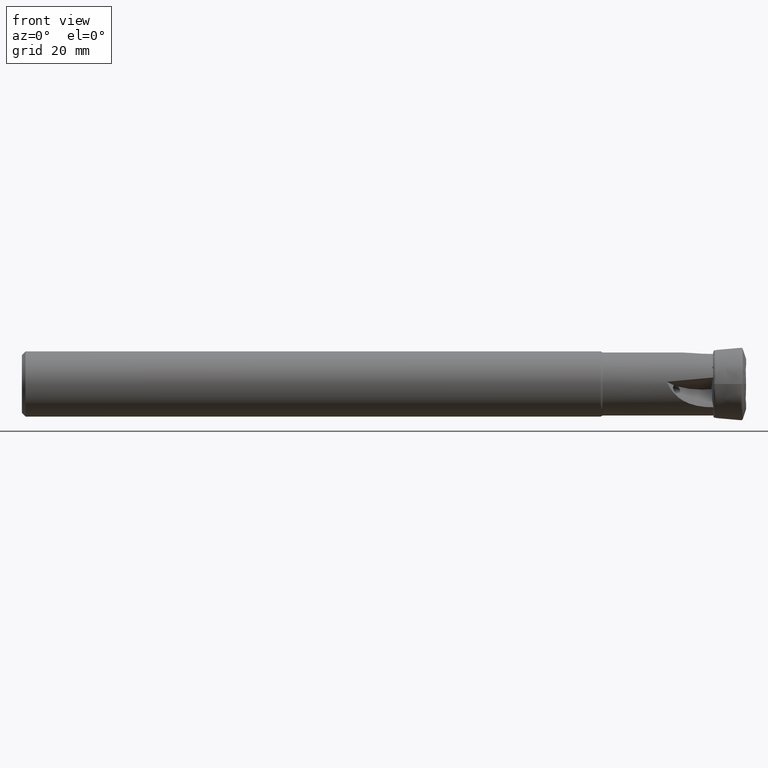
[diagram: clean part render]
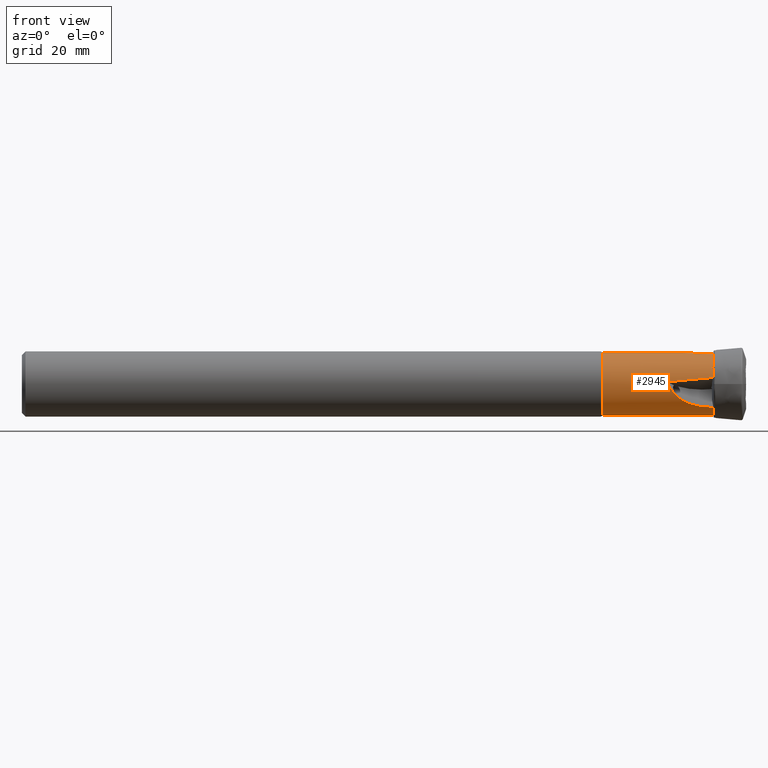
[diagram: same view with one face highlighted and labeled with its STEP entity id]
A machine part, front view. The second image highlights one B-rep face of the part: STEP entity #2945.
In plain terms, the highlighted cylindrical surface (edge-blend (fillet) strip) has radius 8.7 mm, axis along (-1, -0, -0).
Its self-contained STEP definition (entity closure, byte-faithful):
#7 = CARTESIAN_POINT ( 'NONE',  ( 190.8331780349187200, -0.5349060885076061300, -8.683563832427557500 ) ) ;
#24 = CARTESIAN_POINT ( 'NONE',  ( 0.0000000000000000000, 0.0000000000000000000, 0.0000000000000000000 ) ) ;
#31 = EDGE_CURVE ( 'NONE', #3318, #1858, #154, .T. ) ;
#50 = CARTESIAN_POINT ( 'NONE',  ( 185.5817740605085900, -1.805861883482547700, 8.511710115871668600 ) ) ;
#100 = CARTESIAN_POINT ( 'NONE',  ( 190.7499339922303800, -0.04457951022985862100, -8.699922106417663100 ) ) ;
#108 = VERTEX_POINT ( 'NONE', #3670 ) ;
#154 = LINE ( 'NONE', #3620, #2184 ) ;
#164 = CARTESIAN_POINT ( 'NONE',  ( 190.7218601797398500, -7.443768679440847100, 4.503366279459783100 ) ) ;
#168 = EDGE_CURVE ( 'NONE', #3216, #1994, #1362, .T. ) ;
#169 = CARTESIAN_POINT ( 'NONE',  ( 190.9273419289814300, -6.755992365645762600, 5.481755926789754000 ) ) ;
#179 = CARTESIAN_POINT ( 'NONE',  ( 190.8701237815598700, -7.230416549526768900, 4.838541298176176400 ) ) ;
#186 = VERTEX_POINT ( 'NONE', #3763 ) ;
#195 = CARTESIAN_POINT ( 'NONE',  ( 178.3752467746459200, -8.722288639144759200, -0.003202405365566796200 ) ) ;
#197 = CARTESIAN_POINT ( 'NONE',  ( 190.7606320684751900, -7.524682127046013100, 4.366824806070686900 ) ) ;
#198 = CIRCLE ( 'NONE', #1023, 8.699999999999999300 ) ;
#274 = CARTESIAN_POINT ( 'NONE',  ( 190.7358695479989300, -0.3408540665689983000, -8.693320338357683100 ) ) ;
#373 = CARTESIAN_POINT ( 'NONE',  ( 184.8540493353169700, -1.525859984726175300, 8.566335129205413100 ) ) ;
#396 = DIRECTION ( 'NONE',  ( 1.000000000000000000, 0.0000000000000000000, 0.0000000000000000000 ) ) ;
#410 = CARTESIAN_POINT ( 'NONE',  ( 187.0646858415118700, -2.255131062662592000, 8.405605889762728800 ) ) ;
#468 = EDGE_CURVE ( 'NONE', #1994, #872, #198, .T. ) ;
#493 = CARTESIAN_POINT ( 'NONE',  ( 178.6739644203784700, -8.698017992902089500, -0.5953883594258707600 ) ) ;
#509 = CARTESIAN_POINT ( 'NONE',  ( 190.7499339922303800, -7.512063799988648100, 4.388568041556061900 ) ) ;
#518 = CARTESIAN_POINT ( 'NONE',  ( 0.0000000000000000000, 1.065442715258197200E-015, -8.699999999999999300 ) ) ;
#520 = CARTESIAN_POINT ( 'NONE',  ( 181.1386516663259300, -7.918395202408045300, -3.611436591768482500 ) ) ;
#535 = CIRCLE ( 'NONE', #3492, 8.699999999999999300 ) ;
#536 = CARTESIAN_POINT ( 'NONE',  ( 190.8516506979230800, -7.241575316812192600, 4.821782547039671100 ) ) ;
#551 = VECTOR ( 'NONE', #2754, 1000.000000000000000 ) ;
#632 = B_SPLINE_CURVE_WITH_KNOTS ( 'NONE', 3,
 ( #2118, #3696, #2087, #4017, #1106, #179, #536, #1772, #2133, #2416, #2404, #843, #3077, #2442, #796, #1134, #3377, #1790, #3047, #1121, #4002, #164, #1438, #2108, #1451, #1147, #509, #197, #3090, #3455, #3430, #4053, #2177, #1532, #3775, #1879, #1843, #2824, #2164, #879 ),
 .UNSPECIFIED., .F., .F.,
 ( 4, 3, 3, 3, 3, 3, 3, 3, 3, 3, 3, 3, 3, 4 ),
 ( 0.0003847628535540022400, 0.0004114584794302654200, 0.0004934319040601285300, 0.0005754021262754638600, 0.0006573683344469059000, 0.0007393305208305855400, 0.0008212893532444061700, 0.0009032459673836935500, 0.0009852017346431050300, 0.001067158032011791300, 0.001149116022780997300, 0.001231076457913003500, 0.001313039524460435800, 0.001345262288692865500 ),
 .UNSPECIFIED. ) ;
#657 = B_SPLINE_CURVE_WITH_KNOTS ( 'NONE', 3,
 ( #1030, #2314, #1318, #985, #373, #50, #3570, #410, #1308, #3586, #2358, #2021, #1648, #2331 ),
 .UNSPECIFIED., .F., .F.,
 ( 4, 2, 2, 2, 2, 2, 4 ),
 ( 0.006608827281839171200, 0.008933263082616197200, 0.01009548098300467300, 0.01125769888339314900, 0.01358213468417001800, 0.01474435258455845400, 0.01590657048494689000 ),
 .UNSPECIFIED. ) ;
#693 = CARTESIAN_POINT ( 'NONE',  ( 178.1196443445709300, -8.677995356733500600, 0.6183822349580918600 ) ) ;
#703 = CARTESIAN_POINT ( 'NONE',  ( 190.7734430515116900, -0.4433061486187554500, -8.688734438676649000 ) ) ;
#730 = CARTESIAN_POINT ( 'NONE',  ( 190.7197599831859800, -0.2053798488793059900, -8.697618130935866900 ) ) ;
#744 = CARTESIAN_POINT ( 'NONE',  ( 190.7412597237241100, -0.07067760530557000400, -8.699753392478536200 ) ) ;
#749 = CARTESIAN_POINT ( 'NONE',  ( 190.9150110608191500, -6.685362505206562400, 5.567398690050698200 ) ) ;
#774 = CARTESIAN_POINT ( 'NONE',  ( 182.1612330634172000, -1.359809758541708100E-014, 8.699999999999999300 ) ) ;
#776 = ORIENTED_EDGE ( 'NONE', *, *, #1779, .F. ) ;
#794 = CARTESIAN_POINT ( 'NONE',  ( 188.2681702373988600, -5.982594980546073400, -6.316952498377108100 ) ) ;
#796 = CARTESIAN_POINT ( 'NONE',  ( 190.7426001314112800, -7.344080769572440400, 4.664244725177048200 ) ) ;
#814 = CARTESIAN_POINT ( 'NONE',  ( 179.1959624902593500, -8.585264319701060700, -1.436397450817499000 ) ) ;
#813 =( BOUNDED_CURVE ( )  B_SPLINE_CURVE ( 3, ( #1740, #3683, #3653, #3709 ),
 .UNSPECIFIED., .F., .F. ) 
 B_SPLINE_CURVE_WITH_KNOTS ( ( 4, 4 ),
 ( 1.118335955188412000, 1.257367353434170300 ),
 .UNSPECIFIED. ) 
 CURVE ( )  GEOMETRIC_REPRESENTATION_ITEM ( )  RATIONAL_B_SPLINE_CURVE ( ( 1.000000000000000000, 0.9983898377652034000, 0.9983898377652034000, 1.000000000000000000 ) ) 
 REPRESENTATION_ITEM ( '' )  );
#818 = VERTEX_POINT ( 'NONE', #1286 ) ;
#827 = CARTESIAN_POINT ( 'NONE',  ( 187.6135913091343400, -6.068088918276020900, -6.236524026993617300 ) ) ;
#843 = CARTESIAN_POINT ( 'NONE',  ( 190.7734430515116100, -7.303011676321418100, 4.728281605695871200 ) ) ;
#872 = VERTEX_POINT ( 'NONE', #2081 ) ;
#879 = CARTESIAN_POINT ( 'NONE',  ( 190.9334004331780100, -7.629708491137914300, 4.180615784816636100 ) ) ;
#938 = CARTESIAN_POINT ( 'NONE',  ( 160.3696152422706400, 1.065442715258197200E-015, -8.699999999999999300 ) ) ;
#985 = CARTESIAN_POINT ( 'NONE',  ( 184.4955035203367700, -1.369961659060033900, 8.593177537093506400 ) ) ;
#1023 = AXIS2_PLACEMENT_3D ( 'NONE', #3207, #2250, #3167 ) ;
#1028 = CARTESIAN_POINT ( 'NONE',  ( 190.7515286362786100, -0.3933053293049838500, -8.691141315626271800 ) ) ;
#1030 = CARTESIAN_POINT ( 'NONE',  ( 182.1612330634172000, -1.359809758541708100E-014, 8.699999999999999300 ) ) ;
#1041 = CARTESIAN_POINT ( 'NONE',  ( 190.7198797844603500, -0.2328733812049033900, -8.696925373574918800 ) ) ;
#1051 = CARTESIAN_POINT ( 'NONE',  ( 190.7239603618603800, -0.1509108599627724300, -8.698733697272050600 ) ) ;
#1065 =( BOUNDED_CURVE ( )  B_SPLINE_CURVE ( 3, ( #1750, #1785, #1448, #1813 ),
 .UNSPECIFIED., .F., .F. ) 
 B_SPLINE_CURVE_WITH_KNOTS ( ( 4, 4 ),
 ( 3.821217165952724800, 3.840356779138673500 ),
 .UNSPECIFIED. ) 
 CURVE ( )  GEOMETRIC_REPRESENTATION_ITEM ( )  RATIONAL_B_SPLINE_CURVE ( ( 1.000000000000000000, 0.9999694731668991000, 0.9999694731668991000, 1.000000000000000000 ) ) 
 REPRESENTATION_ITEM ( '' )  );
#1085 = EDGE_CURVE ( 'NONE', #3753, #186, #3293, .T. ) ;
#1106 = CARTESIAN_POINT ( 'NONE',  ( 190.8903372764384900, -7.220013879437948000, 4.854037706031434100 ) ) ;
#1120 = CARTESIAN_POINT ( 'NONE',  ( 190.2665021646018600, -5.855201224090928100, -6.434821429353424300 ) ) ;
#1121 = CARTESIAN_POINT ( 'NONE',  ( 190.7198797844603500, -7.415321617730974400, 4.550136950775958600 ) ) ;
#1132 = CARTESIAN_POINT ( 'NONE',  ( 189.5998025217604700, -5.875725518560486200, -6.416477320036670500 ) ) ;
#1134 = CARTESIAN_POINT ( 'NONE',  ( 190.7358695479989000, -7.358209222969271000, 4.641848449810694000 ) ) ;
#1142 = EDGE_CURVE ( 'NONE', #3027, #818, #1065, .T. ) ;
#1147 = CARTESIAN_POINT ( 'NONE',  ( 190.7412597237241100, -7.498868641893539100, 4.411085297912441300 ) ) ;
#1164 = ORIENTED_EDGE ( 'NONE', *, *, #1485, .F. ) ;
#1166 = EDGE_CURVE ( 'NONE', #3079, #1858, #1590, .T. ) ;
#1202 = EDGE_LOOP ( 'NONE', ( #2519, #776, #2782, #3818, #2996, #2041, #3360, #1794, #1963, #1164, #1723, #2584, #2362, #3718, #3113, #2963, #3805 ) ) ;
#1256 = CARTESIAN_POINT ( 'NONE',  ( 190.9118815980675700, -0.6104784657498100200, -8.678554951307027900 ) ) ;
#1286 = CARTESIAN_POINT ( 'NONE',  ( 190.9150110608191500, -1.478827445976908800, -8.573393108042193200 ) ) ;
#1308 = CARTESIAN_POINT ( 'NONE',  ( 187.8233777372729800, -2.411537407181532500, 8.359729626526613400 ) ) ;
#1310 = CARTESIAN_POINT ( 'NONE',  ( 190.9211409508615400, -1.479363741864280400, -8.573300602185131700 ) ) ;
#1318 = CARTESIAN_POINT ( 'NONE',  ( 183.4500707225368800, -0.8596607157168487700, 8.664234760154228000 ) ) ;
#1323 = CARTESIAN_POINT ( 'NONE',  ( 190.9334004331788900, -7.201718489643049300, 4.881111635266439200 ) ) ;
#1341 = CARTESIAN_POINT ( 'NONE',  ( 190.9211409508615400, -6.685014244840661300, 5.567816882984575800 ) ) ;
#1350 = CARTESIAN_POINT ( 'NONE',  ( 190.7218601797398200, -0.1781452608380987000, -8.698175916020609600 ) ) ;
#1362 = B_SPLINE_CURVE_WITH_KNOTS ( 'NONE', 3,
 ( #1789, #195, #493, #814, #4016, #3695, #3651, #2117, #3028, #520, #2457, #1771, #1815, #3989, #2730, #2774, #2758, #827, #794, #1132, #1120, #3682 ),
 .UNSPECIFIED., .F., .F.,
 ( 4, 2, 2, 2, 2, 2, 2, 2, 2, 2, 4 ),
 ( 1.190436211450291600E-016, 0.001988321310618527800, 0.002982481965927709700, 0.003976642621236892500, 0.004970803276546074400, 0.005964963931855257200, 0.007953285242473622000, 0.009941606553091987500, 0.01192992786371035100, 0.01391824917432871700, 0.01590657048494707700 ),
 .UNSPECIFIED. ) ;
#1412 = CARTESIAN_POINT ( 'NONE',  ( 190.9334004331788300, -0.6263074300270636800, -8.677426980568197800 ) ) ;
#1438 = CARTESIAN_POINT ( 'NONE',  ( 190.7239603618604100, -7.457868932612010200, 4.480059487070628100 ) ) ;
#1448 = CARTESIAN_POINT ( 'NONE',  ( 190.9212119510662800, -1.424129468495694700, -8.582827980480596300 ) ) ;
#1451 = CARTESIAN_POINT ( 'NONE',  ( 190.7347770183568800, -7.485342230401625100, 4.433920578197811000 ) ) ;
#1463 = EDGE_CURVE ( 'NONE', #3216, #2787, #813, .T. ) ;
#1473 = DIRECTION ( 'NONE',  ( 0.0000000000000000000, 0.0000000000000000000, 1.000000000000000000 ) ) ;
#1482 = CARTESIAN_POINT ( 'NONE',  ( 190.9334004331780100, 0.0000000000000000000, 0.0000000000000000000 ) ) ;
#1485 = EDGE_CURVE ( 'NONE', #2268, #3136, #632, .T. ) ;
#1532 = CARTESIAN_POINT ( 'NONE',  ( 190.8481881192022600, -7.592971215377183100, 4.246973995970949800 ) ) ;
#1539 = CARTESIAN_POINT ( 'NONE',  ( 190.7426001314113100, -0.3673140366848319800, -8.692282876483020000 ) ) ;
#1590 = CIRCLE ( 'NONE', #2097, 8.699999999999999300 ) ;
#1592 = CARTESIAN_POINT ( 'NONE',  ( 190.9334004331780100, -8.508560881904617900, 1.815045927496741400 ) ) ;
#1648 = CARTESIAN_POINT ( 'NONE',  ( 190.5435836056169900, -2.638165047689402100, 8.290367331031717400 ) ) ;
#1656 = CARTESIAN_POINT ( 'NONE',  ( 190.9334004331780400, -5.868162126309854000, -6.422980091775360600 ) ) ;
#1677 = CARTESIAN_POINT ( 'NONE',  ( 190.7222206241556300, -0.2600818912662134500, -8.696111625884029200 ) ) ;
#1684 = CARTESIAN_POINT ( 'NONE',  ( 190.9334004331780400, -6.684317606399057300, 5.568653170811025200 ) ) ;
#1686 =( BOUNDED_CURVE ( )  B_SPLINE_CURVE ( 3, ( #1700, #1310, #2038, #2635 ),
 .UNSPECIFIED., .F., .T. ) 
 B_SPLINE_CURVE_WITH_KNOTS ( ( 4, 4 ),
 ( 1.741605869199324800, 1.741793529748593400 ),
 .UNSPECIFIED. ) 
 CURVE ( )  GEOMETRIC_REPRESENTATION_ITEM ( )  RATIONAL_B_SPLINE_CURVE ( ( 1.000000000000000000, 0.9999999970652930800, 0.9999999970652930800, 1.000000000000000000 ) ) 
 REPRESENTATION_ITEM ( '' )  );
#1700 = CARTESIAN_POINT ( 'NONE',  ( 190.9150110608191500, -1.478827445976908800, -8.573393108042193200 ) ) ;
#1717 = VERTEX_POINT ( 'NONE', #1896 ) ;
#1723 = ORIENTED_EDGE ( 'NONE', *, *, #2397, .F. ) ;
#1740 = CARTESIAN_POINT ( 'NONE',  ( 178.1196443445709300, -8.677995356733500600, 0.6183822349580918600 ) ) ;
#1750 = CARTESIAN_POINT ( 'NONE',  ( 190.9334004331797400, -1.314475179165541600, -8.600125289991851200 ) ) ;
#1771 = CARTESIAN_POINT ( 'NONE',  ( 182.1676926492332900, -7.530022019762206800, -4.378234641702395200 ) ) ;
#1772 = CARTESIAN_POINT ( 'NONE',  ( 190.8331780349186600, -7.252733830012314100, 4.805024177500189200 ) ) ;
#1779 = EDGE_CURVE ( 'NONE', #2312, #2389, #3473, .T. ) ;
#1785 = CARTESIAN_POINT ( 'NONE',  ( 190.9273419289814300, -1.369343707122199200, -8.591738979817956000 ) ) ;
#1789 = CARTESIAN_POINT ( 'NONE',  ( 178.1196443445709300, -8.677995356733500600, 0.6183822349580918600 ) ) ;
#1790 = CARTESIAN_POINT ( 'NONE',  ( 190.7245615032405200, -7.386703414545301000, 4.596450114565229200 ) ) ;
#1794 = ORIENTED_EDGE ( 'NONE', *, *, #1463, .T. ) ;
#1813 = CARTESIAN_POINT ( 'NONE',  ( 190.9150110608191500, -1.478827445976908800, -8.573393108042193200 ) ) ;
#1815 = CARTESIAN_POINT ( 'NONE',  ( 182.7131103938182500, -7.329788169074950200, -4.698558881687493000 ) ) ;
#1843 = CARTESIAN_POINT ( 'NONE',  ( 190.9076216286660200, -7.620366315223316500, 4.197620423741272900 ) ) ;
#1847 = CARTESIAN_POINT ( 'NONE',  ( 190.9334004331780100, -6.790689387269417000, 5.438431542791075700 ) ) ;
#1858 = VERTEX_POINT ( 'NONE', #2371 ) ;
#1879 = CARTESIAN_POINT ( 'NONE',  ( 190.8863338666575700, -7.612102664207546000, 4.212622267996931800 ) ) ;
#1887 = CARTESIAN_POINT ( 'NONE',  ( 190.8014110715885500, -0.4903441340565740700, -8.686170769113182600 ) ) ;
#1896 = CARTESIAN_POINT ( 'NONE',  ( 190.9334004331780400, -2.628382864324198700, 8.293467520797733500 ) ) ;
#1948 = DIRECTION ( 'NONE',  ( -1.000000000000000000, -0.0000000000000000000, -0.0000000000000000000 ) ) ;
#1963 = ORIENTED_EDGE ( 'NONE', *, *, #2052, .F. ) ;
#1982 = DIRECTION ( 'NONE',  ( 1.000000000000000000, 0.0000000000000000000, 0.0000000000000000000 ) ) ;
#1994 = VERTEX_POINT ( 'NONE', #1656 ) ;
#1998 = DIRECTION ( 'NONE',  ( 0.0000000000000000000, 0.0000000000000000000, 1.000000000000000000 ) ) ;
#2004 = CARTESIAN_POINT ( 'NONE',  ( 190.9334004331780100, 0.0000000000000000000, 0.0000000000000000000 ) ) ;
#2012 = CARTESIAN_POINT ( 'NONE',  ( 190.9334004331780100, 0.0000000000000000000, 0.0000000000000000000 ) ) ;
#2021 = CARTESIAN_POINT ( 'NONE',  ( 190.1539122817515900, -2.633220997572608600, 8.291958270212934000 ) ) ;
#2038 = CARTESIAN_POINT ( 'NONE',  ( 190.9272707416658400, -1.479900029069440200, -8.573208046007684000 ) ) ;
#2041 = ORIENTED_EDGE ( 'NONE', *, *, #468, .F. ) ;
#2052 = EDGE_CURVE ( 'NONE', #3136, #2787, #3001, .T. ) ;
#2081 = CARTESIAN_POINT ( 'NONE',  ( 190.9334004331780400, -1.480436307587664100, -8.573115439510674600 ) ) ;
#2087 = CARTESIAN_POINT ( 'NONE',  ( 190.9189087356871500, -7.207542490588258100, 4.872510779647242000 ) ) ;
#2097 = AXIS2_PLACEMENT_3D ( 'NONE', #3060, #3042, #2131 ) ;
#2108 = CARTESIAN_POINT ( 'NONE',  ( 190.7282943339485000, -7.471815862641217400, 4.456755784655673100 ) ) ;
#2117 = CARTESIAN_POINT ( 'NONE',  ( 180.4299292617031700, -8.184467424357414700, -2.960911022132804300 ) ) ;
#2118 = CARTESIAN_POINT ( 'NONE',  ( 190.9334004331788900, -7.201718489643049300, 4.881111635266439200 ) ) ;
#2124 = DIRECTION ( 'NONE',  ( 1.000000000000000000, 0.0000000000000000000, 0.0000000000000000000 ) ) ;
#2131 = DIRECTION ( 'NONE',  ( 0.0000000000000000000, 0.0000000000000000000, 1.000000000000000000 ) ) ;
#2132 = EDGE_CURVE ( 'NONE', #818, #872, #1686, .T. ) ;
#2133 = CARTESIAN_POINT ( 'NONE',  ( 190.8163197487450000, -7.264723928271412700, 4.786889446393255200 ) ) ;
#2164 = CARTESIAN_POINT ( 'NONE',  ( 190.9246028625582900, -7.626735902595371800, 4.186040819120449000 ) ) ;
#2177 = CARTESIAN_POINT ( 'NONE',  ( 190.8299858247358100, -7.583024767952141000, 4.264756795928108500 ) ) ;
#2184 = VECTOR ( 'NONE', #3636, 1000.000000000000000 ) ;
#2250 = DIRECTION ( 'NONE',  ( 1.000000000000000000, 0.0000000000000000000, 0.0000000000000000000 ) ) ;
#2268 = VERTEX_POINT ( 'NONE', #1323 ) ;
#2298 = DIRECTION ( 'NONE',  ( 0.0000000000000000000, 0.0000000000000000000, 1.000000000000000000 ) ) ;
#2312 = VERTEX_POINT ( 'NONE', #1412 ) ;
#2314 = CARTESIAN_POINT ( 'NONE',  ( 182.7877804672625100, -0.4608135373078646200, 8.699999999999997500 ) ) ;
#2331 = CARTESIAN_POINT ( 'NONE',  ( 190.9334004331780400, -2.628382864324198700, 8.293467520797733500 ) ) ;
#2343 = CARTESIAN_POINT ( 'NONE',  ( 190.7663378043829700, -0.006416732183475340500, -8.699999999999999300 ) ) ;
#2358 = CARTESIAN_POINT ( 'NONE',  ( 189.3748599201810500, -2.593904709134899000, 8.304341222332913800 ) ) ;
#2362 = ORIENTED_EDGE ( 'NONE', *, *, #1085, .T. ) ;
#2365 = AXIS2_PLACEMENT_3D ( 'NONE', #2012, #1982, #1998 ) ;
#2371 = CARTESIAN_POINT ( 'NONE',  ( 160.3696152422706400, 0.0000000000000000000, 8.699999999999999300 ) ) ;
#2389 = VERTEX_POINT ( 'NONE', #3693 ) ;
#2397 = EDGE_CURVE ( 'NONE', #108, #2268, #2550, .T. ) ;
#2404 = CARTESIAN_POINT ( 'NONE',  ( 190.7865028282776900, -7.289820667830285000, 4.748582833472446500 ) ) ;
#2416 = CARTESIAN_POINT ( 'NONE',  ( 190.8014110715884900, -7.277272480633637700, 4.767735861246123400 ) ) ;
#2442 = CARTESIAN_POINT ( 'NONE',  ( 190.7515286362785500, -7.330096502560457400, 4.686183064434921200 ) ) ;
#2457 = CARTESIAN_POINT ( 'NONE',  ( 181.3894677058150400, -7.822853377146995700, -3.812873927713394700 ) ) ;
#2467 = EDGE_CURVE ( 'NONE', #2389, #3079, #3286, .T. ) ;
#2519 = ORIENTED_EDGE ( 'NONE', *, *, #2467, .F. ) ;
#2550 = CIRCLE ( 'NONE', #4026, 8.699999999999999300 ) ;
#2584 = ORIENTED_EDGE ( 'NONE', *, *, #3478, .T. ) ;
#2635 = CARTESIAN_POINT ( 'NONE',  ( 190.9334004331780400, -1.480436307587664100, -8.573115439510674600 ) ) ;
#2643 = CARTESIAN_POINT ( 'NONE',  ( 190.8163197487450900, -0.5132059015486528700, -8.684880196560341000 ) ) ;
#2662 = EDGE_CURVE ( 'NONE', #3027, #2312, #535, .T. ) ;
#2719 = CARTESIAN_POINT ( 'NONE',  ( 190.9150110608191500, -6.685362505206562400, 5.567398690050698200 ) ) ;
#2730 = CARTESIAN_POINT ( 'NONE',  ( 184.4529138657246100, -6.763401436979195900, -5.478095797530145600 ) ) ;
#2754 = DIRECTION ( 'NONE',  ( -1.000000000000000000, -0.0000000000000000000, -0.0000000000000000000 ) ) ;
#2758 = CARTESIAN_POINT ( 'NONE',  ( 186.3266449683272000, -6.294738478050540200, -6.007678632577055900 ) ) ;
#2767 = CARTESIAN_POINT ( 'NONE',  ( 190.9150110608191500, -6.685362505206562400, 5.567398690050698200 ) ) ;
#2769 = DIRECTION ( 'NONE',  ( 1.000000000000000000, 0.0000000000000000000, 0.0000000000000000000 ) ) ;
#2774 = CARTESIAN_POINT ( 'NONE',  ( 185.6942832931983400, -6.435969623448975200, -5.859302652252381400 ) ) ;
#2782 = ORIENTED_EDGE ( 'NONE', *, *, #2662, .F. ) ;
#2787 = VERTEX_POINT ( 'NONE', #1592 ) ;
#2799 = CARTESIAN_POINT ( 'NONE',  ( 190.9334004331780100, 0.0000000000000000000, 0.0000000000000000000 ) ) ;
#2824 = CARTESIAN_POINT ( 'NONE',  ( 190.9160010047961600, -7.623619087404909700, 4.191715336319953500 ) ) ;
#2861 = CARTESIAN_POINT ( 'NONE',  ( 190.9189087356872400, -0.6159468700940301500, -8.678170285528809200 ) ) ;
#2945 = ADVANCED_FACE ( 'NONE', ( #3080 ), #3821, .T. ) ;
#2946 = CARTESIAN_POINT ( 'NONE',  ( 190.7624856820948200, -0.4183053697916313500, -8.689937894922115500 ) ) ;
#2960 = CARTESIAN_POINT ( 'NONE',  ( 190.7282943339485000, -0.1237557966545826500, -8.699160241774670500 ) ) ;
#2963 = ORIENTED_EDGE ( 'NONE', *, *, #31, .T. ) ;
#2977 = CARTESIAN_POINT ( 'NONE',  ( 190.7291391324771700, -0.3143947564822280900, -8.694357774353443700 ) ) ;
#2996 = ORIENTED_EDGE ( 'NONE', *, *, #2132, .T. ) ;
#3001 = CIRCLE ( 'NONE', #2365, 8.699999999999999300 ) ;
#3005 = AXIS2_PLACEMENT_3D ( 'NONE', #24, #1948, #3199 ) ;
#3027 = VERTEX_POINT ( 'NONE', #3213 ) ;
#3028 = CARTESIAN_POINT ( 'NONE',  ( 180.6593185628692300, -8.099034608459195500, -3.185764468516668400 ) ) ;
#3042 = DIRECTION ( 'NONE',  ( -1.000000000000000000, -0.0000000000000000000, -0.0000000000000000000 ) ) ;
#3047 = CARTESIAN_POINT ( 'NONE',  ( 190.7222206241556300, -7.401012636527741300, 4.573293337842729400 ) ) ;
#3060 = CARTESIAN_POINT ( 'NONE',  ( 160.3696152422706400, 0.0000000000000000000, 0.0000000000000000000 ) ) ;
#3077 = CARTESIAN_POINT ( 'NONE',  ( 190.7624856820947600, -7.316554289415896600, 4.707232024239917900 ) ) ;
#3079 = VERTEX_POINT ( 'NONE', #938 ) ;
#3080 = FACE_OUTER_BOUND ( 'NONE', #1202, .T. ) ;
#3090 = CARTESIAN_POINT ( 'NONE',  ( 190.7713302718072200, -7.537300604002132900, 4.345081312287684100 ) ) ;
#3107 = DIRECTION ( 'NONE',  ( 0.0000000000000000000, 0.0000000000000000000, 1.000000000000000000 ) ) ;
#3113 = ORIENTED_EDGE ( 'NONE', *, *, #3152, .F. ) ;
#3136 = VERTEX_POINT ( 'NONE', #3243 ) ;
#3152 = EDGE_CURVE ( 'NONE', #3318, #1717, #657, .T. ) ;
#3154 = AXIS2_PLACEMENT_3D ( 'NONE', #1482, #2124, #3107 ) ;
#3167 = DIRECTION ( 'NONE',  ( 0.0000000000000000000, 1.776356839400250500E-015, 1.000000000000000000 ) ) ;
#3199 = DIRECTION ( 'NONE',  ( 0.0000000000000000000, 0.0000000000000000000, 1.000000000000000000 ) ) ;
#3207 = CARTESIAN_POINT ( 'NONE',  ( 190.9334004331780100, 0.0000000000000000000, 0.0000000000000000000 ) ) ;
#3213 = CARTESIAN_POINT ( 'NONE',  ( 190.9334004331797400, -1.314475179165541600, -8.600125289991851200 ) ) ;
#3216 = VERTEX_POINT ( 'NONE', #693 ) ;
#3243 = CARTESIAN_POINT ( 'NONE',  ( 190.9334004331780100, -7.629708491137914300, 4.180615784816636100 ) ) ;
#3286 = LINE ( 'NONE', #518, #551 ) ;
#3292 = CARTESIAN_POINT ( 'NONE',  ( 190.7606320684751900, -0.01944015241036856400, -8.699978280459914600 ) ) ;
#3293 =( BOUNDED_CURVE ( )  B_SPLINE_CURVE ( 3, ( #749, #1341, #3317, #1684 ),
 .UNSPECIFIED., .F., .F. ) 
 B_SPLINE_CURVE_WITH_KNOTS ( ( 4, 4 ),
 ( 1.741605869199324800, 1.741793529748593400 ),
 .UNSPECIFIED. ) 
 CURVE ( )  GEOMETRIC_REPRESENTATION_ITEM ( )  RATIONAL_B_SPLINE_CURVE ( ( 1.000000000000000000, 0.9999999970652930800, 0.9999999970652930800, 1.000000000000000000 ) ) 
 REPRESENTATION_ITEM ( '' )  );
#3317 = CARTESIAN_POINT ( 'NONE',  ( 190.9272707416658400, -6.684665945237133800, 5.568235043239243800 ) ) ;
#3318 = VERTEX_POINT ( 'NONE', #774 ) ;
#3327 = EDGE_CURVE ( 'NONE', #1717, #186, #3668, .T. ) ;
#3360 = ORIENTED_EDGE ( 'NONE', *, *, #168, .F. ) ;
#3377 = CARTESIAN_POINT ( 'NONE',  ( 190.7291391324771400, -7.372337323939782500, 4.619452733106823100 ) ) ;
#3430 = CARTESIAN_POINT ( 'NONE',  ( 190.7987626164870700, -7.560837771276271500, 4.303920561121224800 ) ) ;
#3455 = CARTESIAN_POINT ( 'NONE',  ( 190.7841232236974100, -7.549425815625344400, 4.323968316209713300 ) ) ;
#3466 = CARTESIAN_POINT ( 'NONE',  ( 190.7865028282777500, -0.4674830318468589700, -8.687461304110085400 ) ) ;
#3473 = B_SPLINE_CURVE_WITH_KNOTS ( 'NONE', 3,
 ( #3782, #4097, #2861, #1256, #3829, #3516, #4136, #7, #2643, #1887, #3466, #703, #2946, #1028, #1539, #274, #2977, #3938, #1677, #1041, #730, #1350, #1051, #2960, #3973, #744, #100, #3292, #3610, #2343, #3596 ),
 .UNSPECIFIED., .F., .F.,
 ( 4, 3, 3, 3, 3, 3, 3, 3, 3, 3, 4 ),
 ( 0.0003847628535541842300, 0.0004114584794302440600, 0.0004934319040601262500, 0.0005754021262754812100, 0.0006573683344469317100, 0.0007393305208306325900, 0.0008212893532444658000, 0.0009032459673837664100, 0.0009852017346431997900, 0.001067158032011905600, 0.001088441668297376500 ),
 .UNSPECIFIED. ) ;
#3478 = EDGE_CURVE ( 'NONE', #108, #3753, #3939, .T. ) ;
#3492 = AXIS2_PLACEMENT_3D ( 'NONE', #2004, #396, #2298 ) ;
#3516 = CARTESIAN_POINT ( 'NONE',  ( 190.8701237815599500, -0.5750914067174918200, -8.680995060921684800 ) ) ;
#3570 = CARTESIAN_POINT ( 'NONE',  ( 185.9496154494675300, -1.929620861690012600, 8.484045022928665200 ) ) ;
#3586 = CARTESIAN_POINT ( 'NONE',  ( 188.9842543788529700, -2.559349453891230500, 8.315189618798976700 ) ) ;
#3596 = CARTESIAN_POINT ( 'NONE',  ( 190.7693955570472000, -5.149960319306146100E-016, -8.699999999999999300 ) ) ;
#3610 = CARTESIAN_POINT ( 'NONE',  ( 190.7634153594173400, -0.01289971043654369400, -8.699992895115803600 ) ) ;
#3620 = CARTESIAN_POINT ( 'NONE',  ( 0.0000000000000000000, 0.0000000000000000000, 8.699999999999999300 ) ) ;
#3636 = DIRECTION ( 'NONE',  ( -1.000000000000000000, -0.0000000000000000000, -0.0000000000000000000 ) ) ;
#3651 = CARTESIAN_POINT ( 'NONE',  ( 179.9911934909593800, -8.340990308759204600, -2.486037363061994300 ) ) ;
#3653 = CARTESIAN_POINT ( 'NONE',  ( 186.5458879571293400, -8.592744824890010200, 1.420408969104253200 ) ) ;
#3668 = CIRCLE ( 'NONE', #3154, 8.699999999999999300 ) ;
#3670 = CARTESIAN_POINT ( 'NONE',  ( 190.9334004331780100, -6.790689387269417000, 5.438431542791075700 ) ) ;
#3682 = CARTESIAN_POINT ( 'NONE',  ( 190.9334004331780400, -5.868162126309854000, -6.422980091775360600 ) ) ;
#3683 = CARTESIAN_POINT ( 'NONE',  ( 182.2677474272773300, -8.649314068826541300, 1.020877761529311400 ) ) ;
#3693 = CARTESIAN_POINT ( 'NONE',  ( 190.7693955570472000, -5.149960319306146100E-016, -8.699999999999999300 ) ) ;
#3695 = CARTESIAN_POINT ( 'NONE',  ( 179.7818454764770600, -8.412092819143406800, -2.236023166328016100 ) ) ;
#3696 = CARTESIAN_POINT ( 'NONE',  ( 190.9260869110835900, -7.204576224303130200, 4.876895259555771700 ) ) ;
#3703 = CARTESIAN_POINT ( 'NONE',  ( 190.9212119510662800, -6.720882333160019200, 5.524746288235864900 ) ) ;
#3709 = CARTESIAN_POINT ( 'NONE',  ( 190.9334004331780100, -8.508560881904617900, 1.815045927496741400 ) ) ;
#3718 = ORIENTED_EDGE ( 'NONE', *, *, #3327, .F. ) ;
#3753 = VERTEX_POINT ( 'NONE', #2719 ) ;
#3763 = CARTESIAN_POINT ( 'NONE',  ( 190.9334004331780400, -6.684317606399057300, 5.568653170811025200 ) ) ;
#3775 = CARTESIAN_POINT ( 'NONE',  ( 190.8663907642590200, -7.602917854378508100, 4.229190853503288500 ) ) ;
#3782 = CARTESIAN_POINT ( 'NONE',  ( 190.9334004331788300, -0.6263074300270636800, -8.677426980568197800 ) ) ;
#3805 = ORIENTED_EDGE ( 'NONE', *, *, #1166, .F. ) ;
#3818 = ORIENTED_EDGE ( 'NONE', *, *, #1142, .T. ) ;
#3821 = CYLINDRICAL_SURFACE ( 'NONE', #3005, 8.699999999999999300 ) ;
#3829 = CARTESIAN_POINT ( 'NONE',  ( 190.8903372764385700, -0.5937130246319580800, -8.679734288285207100 ) ) ;
#3938 = CARTESIAN_POINT ( 'NONE',  ( 190.7245615032405200, -0.2872908591688855800, -8.695297864500096500 ) ) ;
#3939 =( BOUNDED_CURVE ( )  B_SPLINE_CURVE ( 3, ( #1847, #169, #3703, #2767 ),
 .UNSPECIFIED., .F., .F. ) 
 B_SPLINE_CURVE_WITH_KNOTS ( ( 4, 4 ),
 ( 3.821217165952870400, 3.840356779138673500 ),
 .UNSPECIFIED. ) 
 CURVE ( )  GEOMETRIC_REPRESENTATION_ITEM ( )  RATIONAL_B_SPLINE_CURVE ( ( 1.000000000000000000, 0.9999694731668995500, 0.9999694731668995500, 1.000000000000000000 ) ) 
 REPRESENTATION_ITEM ( '' )  );
#3973 = CARTESIAN_POINT ( 'NONE',  ( 190.7347770183568800, -0.09721674388120026000, -8.699456816647181500 ) ) ;
#3989 = CARTESIAN_POINT ( 'NONE',  ( 183.8551103769231600, -6.946732118959193500, -5.248348600809239700 ) ) ;
#4002 = CARTESIAN_POINT ( 'NONE',  ( 190.7197599831859800, -7.429668329367007800, 4.526673232022697700 ) ) ;
#4016 = CARTESIAN_POINT ( 'NONE',  ( 179.3827845148906000, -8.534707585973237100, -1.709348302766455100 ) ) ;
#4017 = CARTESIAN_POINT ( 'NONE',  ( 190.9118815980674500, -7.210609823096294100, 4.867967335456058600 ) ) ;
#4026 = AXIS2_PLACEMENT_3D ( 'NONE', #2799, #2769, #1473 ) ;
#4053 = CARTESIAN_POINT ( 'NONE',  ( 190.8134022669487100, -7.572249927792166000, 4.283872453166693200 ) ) ;
#4097 = CARTESIAN_POINT ( 'NONE',  ( 190.9260869110836200, -0.6212270742197216800, -8.677793663525763500 ) ) ;
#4136 = CARTESIAN_POINT ( 'NONE',  ( 190.8516506979231300, -0.5549985188548651700, -8.682279461297529400 ) ) ;